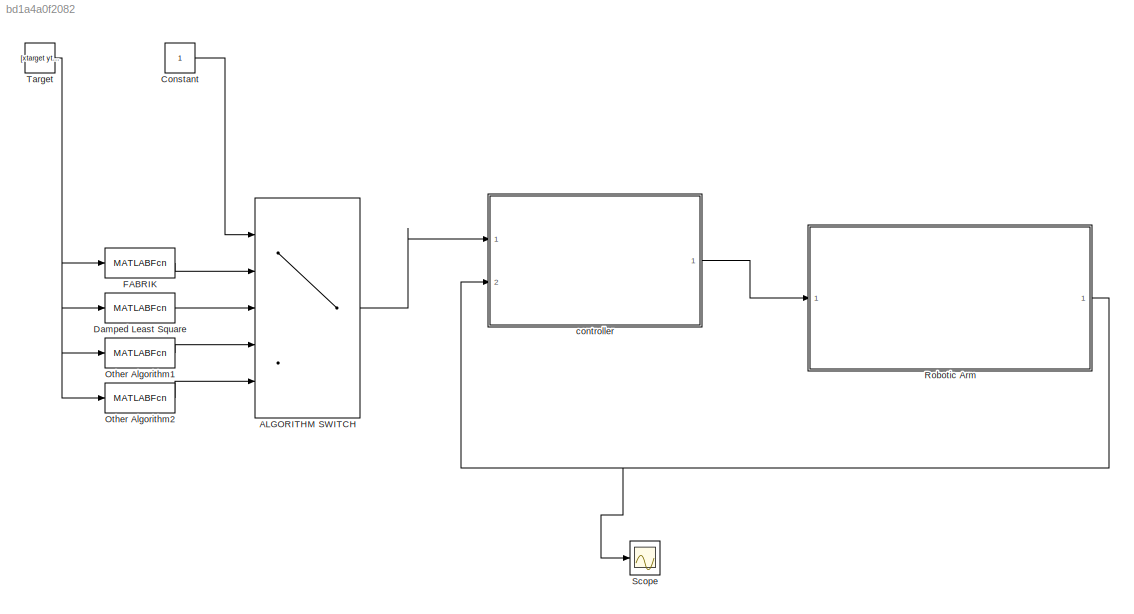
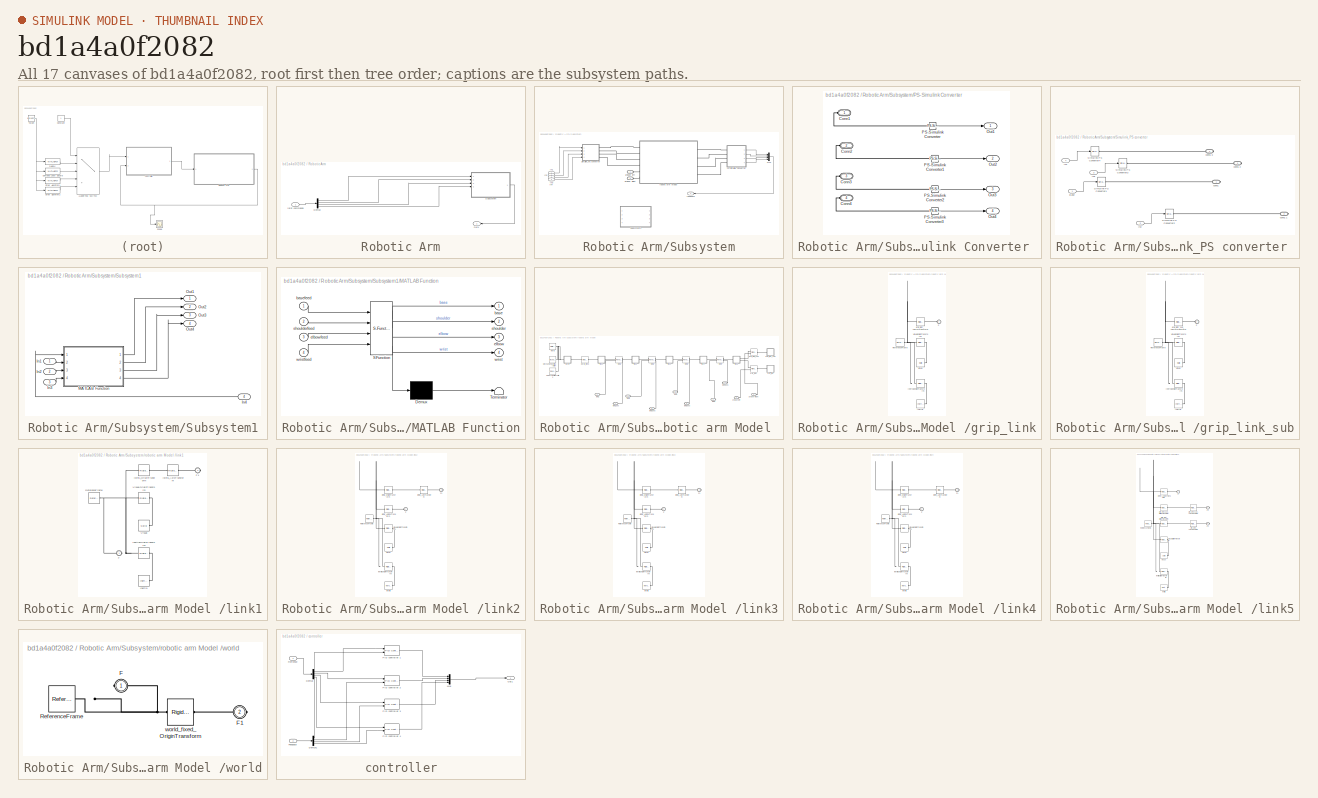
[diagram: thumbnail index - all 17 canvases of the model, root first then tree order]
MODEL slx_bd1a4a0f2082
KIND model
CONFIG AbsTol = auto
CONFIG EnableMultiTasking = off
CONFIG FixedStep = auto
CONFIG MaxStep = auto
CONFIG MinStep = auto
CONFIG RelTol = 1e-3
CONFIG SampleTimeConstraint = Unconstrained
CONFIG Solver = VariableStepAuto
CONFIG SolverName = VariableStepAuto
CONFIG StartTime = 0.0
CONFIG StopTime = 10
BLOCK [MultiPortSwitch] ALGORITHM SWITCH 
  InputSameDT = off
  Inputs = 4
  Ports = [5, 1]
  SaturateOnIntegerOverflow = off
BLOCK [Constant] Constant
BLOCK [MATLABFcn] Damped Least Square
  MATLABFcn = dampedLeastSquare
  Output1D = off
  OutputDimensions = 4
  Ports = [1, 1]
BLOCK [MATLABFcn] FABRIK 
  MATLABFcn = fcn
  Output1D = off
  OutputDimensions = 4
  Ports = [1, 1]
BLOCK [MATLABFcn] Other Algorithm1
  MATLABFcn = fcn
  Output1D = off
  OutputDimensions = 4
  Ports = [1, 1]
BLOCK [MATLABFcn] Other Algorithm2
  MATLABFcn = fcn
  Output1D = off
  OutputDimensions = 4
  Ports = [1, 1]
BLOCK [SubSystem] Robotic Arm
  Ports = [1, 1]
  RequestExecContextInheritance = off
BLOCK [Demux] Robotic Arm/Demux
  DisplayOption = bar
  Ports = [1, 4]
BLOCK [Outport] Robotic Arm/Out1
  IconDisplay = Port number
BLOCK [SubSystem] Robotic Arm/Subsystem
  Ports = [4, 1, 0, 0, 0, 2]
  RequestExecContextInheritance = off
BLOCK [Inport] Robotic Arm/Subsystem/In1
  IconDisplay = Port number
BLOCK [Inport] Robotic Arm/Subsystem/In2
  IconDisplay = Port number
  Port = 2
BLOCK [Inport] Robotic Arm/Subsystem/In3
  IconDisplay = Port number
  Port = 3
BLOCK [Inport] Robotic Arm/Subsystem/In4
  IconDisplay = Port number
  Port = 4
BLOCK [Mux] Robotic Arm/Subsystem/Mux
  DisplayOption = bar
  Ports = [4, 1]
BLOCK [SubSystem] Robotic Arm/Subsystem/PS-Simulink Converter 
  Ports = [0, 4, 0, 0, 0, 4]
  RequestExecContextInheritance = off
BLOCK [PMIOPort] Robotic Arm/Subsystem/PS-Simulink Converter /Conn1
  Side = Left
BLOCK [PMIOPort] Robotic Arm/Subsystem/PS-Simulink Converter /Conn2
  Port = 2
  Side = Left
BLOCK [PMIOPort] Robotic Arm/Subsystem/PS-Simulink Converter /Conn3
  Port = 3
  Side = Left
BLOCK [PMIOPort] Robotic Arm/Subsystem/PS-Simulink Converter /Conn4
  Port = 4
  Side = Left
BLOCK [Outport] Robotic Arm/Subsystem/PS-Simulink Converter /Out1
  IconDisplay = Port number
BLOCK [Outport] Robotic Arm/Subsystem/PS-Simulink Converter /Out2
  IconDisplay = Port number
  Port = 2
BLOCK [Outport] Robotic Arm/Subsystem/PS-Simulink Converter /Out3
  IconDisplay = Port number
  Port = 3
BLOCK [Outport] Robotic Arm/Subsystem/PS-Simulink Converter /Out4
  IconDisplay = Port number
  Port = 4
BLOCK [Reference] Robotic Arm/Subsystem/PS-Simulink Converter /PS-Simulink Converter  REF=nesl_utility/PS-Simulink
Converter
  Ports = [0, 1, 0, 0, 0, 1]
  SourceBlock = nesl_utility/PS-Simulink\nConverter
  SourceProductBaseCode = SS
  SourceProductName = Simscape
  SourceType = PS-Simulink\nConverter
BLOCK [Reference] Robotic Arm/Subsystem/PS-Simulink Converter /PS-Simulink Converter1  REF=nesl_utility/PS-Simulink
Converter
  Ports = [0, 1, 0, 0, 0, 1]
  SourceBlock = nesl_utility/PS-Simulink\nConverter
  SourceProductBaseCode = SS
  SourceProductName = Simscape
  SourceType = PS-Simulink\nConverter
BLOCK [Reference] Robotic Arm/Subsystem/PS-Simulink Converter /PS-Simulink Converter2  REF=nesl_utility/PS-Simulink
Converter
  Ports = [0, 1, 0, 0, 0, 1]
  SourceBlock = nesl_utility/PS-Simulink\nConverter
  SourceProductBaseCode = SS
  SourceProductName = Simscape
  SourceType = PS-Simulink\nConverter
BLOCK [Reference] Robotic Arm/Subsystem/PS-Simulink Converter /PS-Simulink Converter3  REF=nesl_utility/PS-Simulink
Converter
  Ports = [0, 1, 0, 0, 0, 1]
  SourceBlock = nesl_utility/PS-Simulink\nConverter
  SourceProductBaseCode = SS
  SourceProductName = Simscape
  SourceType = PS-Simulink\nConverter
BLOCK [SubSystem] Robotic Arm/Subsystem/Simulink_PS converter 
  Ports = [4, 0, 0, 0, 0, 0, 4]
  RequestExecContextInheritance = off
BLOCK [Inport] Robotic Arm/Subsystem/Simulink_PS converter /Base
  IconDisplay = Port number
BLOCK [Inport] Robotic Arm/Subsystem/Simulink_PS converter /In2
  IconDisplay = Port number
  Port = 2
BLOCK [Inport] Robotic Arm/Subsystem/Simulink_PS converter /In3
  IconDisplay = Port number
  Port = 3
BLOCK [Inport] Robotic Arm/Subsystem/Simulink_PS converter /In4
  IconDisplay = Port number
  Port = 4
BLOCK [Reference] Robotic Arm/Subsystem/Simulink_PS converter /Simulink-PS Converter1  REF=nesl_utility/Simulink-PS
Converter
  Ports = [1, 0, 0, 0, 0, 0, 1]
  SourceBlock = nesl_utility/Simulink-PS\nConverter
  SourceProductBaseCode = SS
  SourceProductName = Simscape
  SourceType = Simulink-PS\nConverter
BLOCK [Reference] Robotic Arm/Subsystem/Simulink_PS converter /Simulink-PS Converter2  REF=nesl_utility/Simulink-PS
Converter
  Ports = [1, 0, 0, 0, 0, 0, 1]
  SourceBlock = nesl_utility/Simulink-PS\nConverter
  SourceProductBaseCode = SS
  SourceProductName = Simscape
  SourceType = Simulink-PS\nConverter
BLOCK [Reference] Robotic Arm/Subsystem/Simulink_PS converter /Simulink-PS Converter3  REF=nesl_utility/Simulink-PS
Converter
  Ports = [1, 0, 0, 0, 0, 0, 1]
  SourceBlock = nesl_utility/Simulink-PS\nConverter
  SourceProductBaseCode = SS
  SourceProductName = Simscape
  SourceType = Simulink-PS\nConverter
BLOCK [Reference] Robotic Arm/Subsystem/Simulink_PS converter /Simulink-PS Converter4  REF=nesl_utility/Simulink-PS
Converter
  Ports = [1, 0, 0, 0, 0, 0, 1]
  SourceBlock = nesl_utility/Simulink-PS\nConverter
  SourceProductBaseCode = SS
  SourceProductName = Simscape
  SourceType = Simulink-PS\nConverter
BLOCK [PMIOPort] Robotic Arm/Subsystem/Simulink_PS converter /conn1 
  Side = Right
BLOCK [PMIOPort] Robotic Arm/Subsystem/Simulink_PS converter /conn1 1
  Port = 2
  Side = Right
BLOCK [PMIOPort] Robotic Arm/Subsystem/Simulink_PS converter /conn1 2
  Port = 3
  Side = Right
BLOCK [PMIOPort] Robotic Arm/Subsystem/Simulink_PS converter /conn1 3
  Port = 4
  Side = Right
BLOCK [SubSystem] Robotic Arm/Subsystem/Subsystem1
  Ports = [4, 4]
  RequestExecContextInheritance = off
BLOCK [Inport] Robotic Arm/Subsystem/Subsystem1/In1
  IconDisplay = Port number
BLOCK [Inport] Robotic Arm/Subsystem/Subsystem1/In2
  IconDisplay = Port number
  Port = 2
BLOCK [Inport] Robotic Arm/Subsystem/Subsystem1/In3
  IconDisplay = Port number
  Port = 3
BLOCK [Inport] Robotic Arm/Subsystem/Subsystem1/In4
  IconDisplay = Port number
  Port = 4
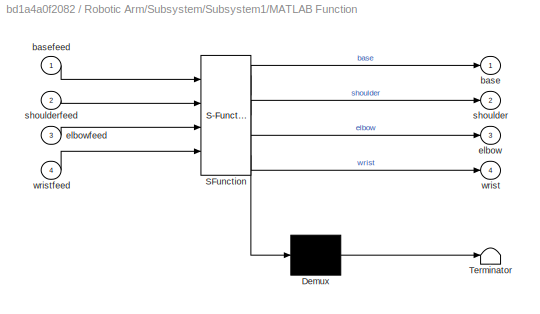
BLOCK [SubSystem] Robotic Arm/Subsystem/Subsystem1/MATLAB Function
  ErrorFcn = Stateflow.Translate.translate
  PermitHierarchicalResolution = ExplicitOnly
  Ports = [4, 4]
  RequestExecContextInheritance = off
  SFBlockType = MATLAB Function
  TreatAsAtomicUnit = on
BLOCK [Demux] Robotic Arm/Subsystem/Subsystem1/MATLAB Function/ Demux 
  Outputs = 1
  Ports = [1, 1]
BLOCK [S-Function] Robotic Arm/Subsystem/Subsystem1/MATLAB Function/ SFunction 
  EnableBusSupport = off
  FunctionName = sf_sfun
  PortCounts = [4 5]
  Ports = [4, 5]
  SFcnIsStateOwnerBlock = off
  SFunctionDeploymentMode = off
  Tag = Stateflow S-Function physicalModel 2
BLOCK [Terminator] Robotic Arm/Subsystem/Subsystem1/MATLAB Function/ Terminator 
BLOCK [Outport] Robotic Arm/Subsystem/Subsystem1/MATLAB Function/base
  IconDisplay = Port number
BLOCK [Inport] Robotic Arm/Subsystem/Subsystem1/MATLAB Function/basefeed
  IconDisplay = Port number
BLOCK [Outport] Robotic Arm/Subsystem/Subsystem1/MATLAB Function/elbow
  IconDisplay = Port number
  Port = 3
BLOCK [Inport] Robotic Arm/Subsystem/Subsystem1/MATLAB Function/elbowfeed
  IconDisplay = Port number
  Port = 3
BLOCK [Outport] Robotic Arm/Subsystem/Subsystem1/MATLAB Function/shoulder
  IconDisplay = Port number
  Port = 2
BLOCK [Inport] Robotic Arm/Subsystem/Subsystem1/MATLAB Function/shoulderfeed
  IconDisplay = Port number
  Port = 2
BLOCK [Outport] Robotic Arm/Subsystem/Subsystem1/MATLAB Function/wrist
  IconDisplay = Port number
  Port = 4
BLOCK [Inport] Robotic Arm/Subsystem/Subsystem1/MATLAB Function/wristfeed
  IconDisplay = Port number
  Port = 4
BLOCK [Outport] Robotic Arm/Subsystem/Subsystem1/Out1
  IconDisplay = Port number
BLOCK [Outport] Robotic Arm/Subsystem/Subsystem1/Out2
  IconDisplay = Port number
  Port = 2
BLOCK [Outport] Robotic Arm/Subsystem/Subsystem1/Out3
  IconDisplay = Port number
  Port = 3
BLOCK [Outport] Robotic Arm/Subsystem/Subsystem1/Out4
  IconDisplay = Port number
  Port = 4
BLOCK [Outport] Robotic Arm/Subsystem/feedback 
  IconDisplay = Port number
BLOCK [PMIOPort] Robotic Arm/Subsystem/gripper Right
  Port = 2
  Side = Left
BLOCK [PMIOPort] Robotic Arm/Subsystem/gripper left 
  Side = Left
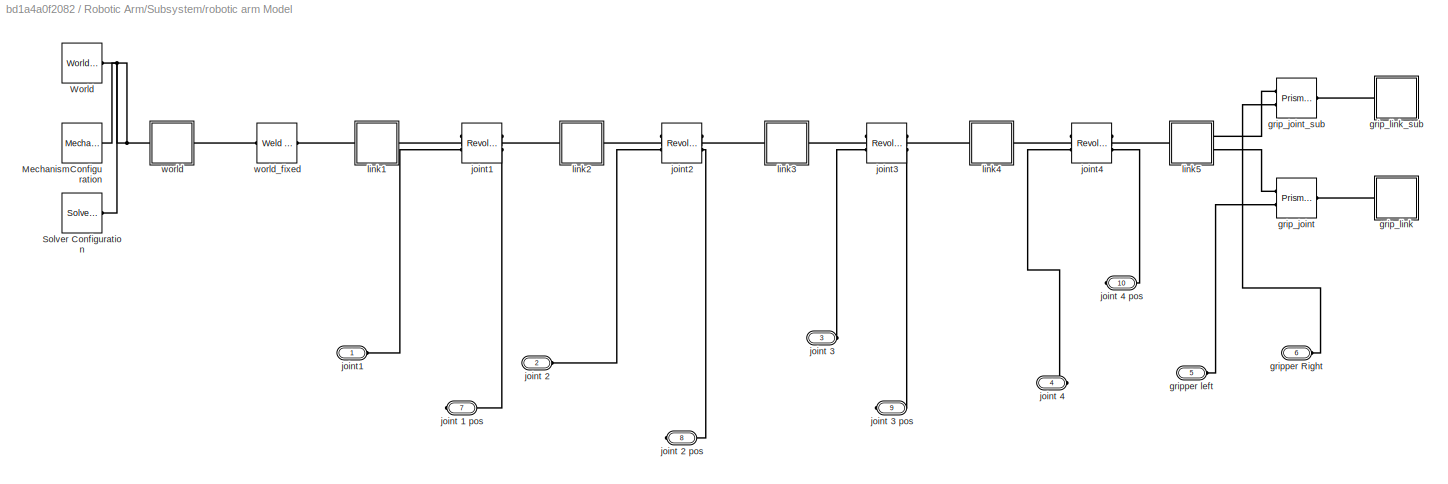
BLOCK [SubSystem] Robotic Arm/Subsystem/robotic arm Model 
  Ports = [0, 0, 0, 0, 0, 6, 4]
  RequestExecContextInheritance = off
BLOCK [Reference] Robotic Arm/Subsystem/robotic arm Model /MechanismConfiguration  REF=sm_lib/Utilities/Mechanism
Configuration
  Ports = [0, 0, 0, 0, 0, 0, 1]
  SourceBlock = sm_lib/Utilities/Mechanism\nConfiguration
  SourceProductBaseCode = MS
  SourceProductName = Simscape Multibody
  SourceType = Mechanism\nConfiguration
BLOCK [Reference] Robotic Arm/Subsystem/robotic arm Model /Solver Configuration  REF=nesl_utility/Solver
Configuration
  Ports = [0, 0, 0, 0, 0, 0, 1]
  SourceBlock = nesl_utility/Solver\nConfiguration
  SourceProductBaseCode = SS
  SourceProductName = Simscape
  SourceType = Solver\nConfiguration
BLOCK [Reference] Robotic Arm/Subsystem/robotic arm Model /World  REF=sm_lib/Frames and
Transforms/World Frame
  Ports = [0, 0, 0, 0, 0, 0, 1]
  SourceBlock = sm_lib/Frames and\nTransforms/World Frame
  SourceProductBaseCode = MS
  SourceProductName = Simscape Multibody
  SourceType = World Frame
BLOCK [Reference] Robotic Arm/Subsystem/robotic arm Model /grip_joint  REF=sm_lib/Joints/Prismatic
Joint
  Ports = [0, 0, 0, 0, 0, 2, 1]
  SourceBlock = sm_lib/Joints/Prismatic\nJoint
  SourceProductBaseCode = MS
  SourceProductName = Simscape Multibody
  SourceType = Prismatic\nJoint
BLOCK [Reference] Robotic Arm/Subsystem/robotic arm Model /grip_joint_sub  REF=sm_lib/Joints/Prismatic
Joint
  Ports = [0, 0, 0, 0, 0, 2, 1]
  SourceBlock = sm_lib/Joints/Prismatic\nJoint
  SourceProductBaseCode = MS
  SourceProductName = Simscape Multibody
  SourceType = Prismatic\nJoint
BLOCK [SubSystem] Robotic Arm/Subsystem/robotic arm Model /grip_link
  Ports = [0, 0, 0, 0, 0, 1]
  RequestExecContextInheritance = off
BLOCK [PMIOPort] Robotic Arm/Subsystem/robotic arm Model /grip_link/F
  Side = Left
BLOCK [Reference] Robotic Arm/Subsystem/robotic arm Model /grip_link/Inertia  REF=sm_lib/Body Elements/Inertia
  Ports = [0, 0, 0, 0, 0, 0, 1]
  SourceBlock = sm_lib/Body Elements/Inertia
  SourceProductBaseCode = MS
  SourceProductName = Simscape Multibody
  SourceType = Inertia
BLOCK [Reference] Robotic Arm/Subsystem/robotic arm Model /grip_link/InertiaOriginTransform  REF=sm_lib/Frames and
Transforms/Rigid
Transform
  Ports = [0, 0, 0, 0, 0, 1, 1]
  SourceBlock = sm_lib/Frames and\nTransforms/Rigid\nTransform
  SourceProductBaseCode = MS
  SourceProductName = Simscape Multibody
  SourceType = Rigid\nTransform
BLOCK [Reference] Robotic Arm/Subsystem/robotic arm Model /grip_link/ReferenceFrame  REF=sm_lib/Frames and
Transforms/Reference
Frame
  Ports = [0, 0, 0, 0, 0, 0, 1]
  SourceBlock = sm_lib/Frames and\nTransforms/Reference\nFrame
  SourceProductBaseCode = MS
  SourceProductName = Simscape Multibody
  SourceType = Reference\nFrame
BLOCK [Reference] Robotic Arm/Subsystem/robotic arm Model /grip_link/Visual  REF=sm_lib/Body Elements/Solid
  Ports = [0, 0, 0, 0, 0, 0, 1]
  SourceBlock = sm_lib/Body Elements/Solid
  SourceProductBaseCode = MS
  SourceProductName = Simscape Multibody
  SourceType = Solid
BLOCK [Reference] Robotic Arm/Subsystem/robotic arm Model /grip_link/VisualOriginTransform  REF=sm_lib/Frames and
Transforms/Rigid
Transform
  Ports = [0, 0, 0, 0, 0, 1, 1]
  SourceBlock = sm_lib/Frames and\nTransforms/Rigid\nTransform
  SourceProductBaseCode = MS
  SourceProductName = Simscape Multibody
  SourceType = Rigid\nTransform
BLOCK [Reference] Robotic Arm/Subsystem/robotic arm Model /grip_link/grip_joint_AxisInvTransform  REF=sm_lib/Frames and
Transforms/Rigid
Transform
  Ports = [0, 0, 0, 0, 0, 1, 1]
  SourceBlock = sm_lib/Frames and\nTransforms/Rigid\nTransform
  SourceProductBaseCode = MS
  SourceProductName = Simscape Multibody
  SourceType = Rigid\nTransform
BLOCK [SubSystem] Robotic Arm/Subsystem/robotic arm Model /grip_link_sub
  Ports = [0, 0, 0, 0, 0, 1]
  RequestExecContextInheritance = off
BLOCK [PMIOPort] Robotic Arm/Subsystem/robotic arm Model /grip_link_sub/F
  Side = Left
BLOCK [Reference] Robotic Arm/Subsystem/robotic arm Model /grip_link_sub/Inertia  REF=sm_lib/Body Elements/Inertia
  Ports = [0, 0, 0, 0, 0, 0, 1]
  SourceBlock = sm_lib/Body Elements/Inertia
  SourceProductBaseCode = MS
  SourceProductName = Simscape Multibody
  SourceType = Inertia
BLOCK [Reference] Robotic Arm/Subsystem/robotic arm Model /grip_link_sub/InertiaOriginTransform  REF=sm_lib/Frames and
Transforms/Rigid
Transform
  Ports = [0, 0, 0, 0, 0, 1, 1]
  SourceBlock = sm_lib/Frames and\nTransforms/Rigid\nTransform
  SourceProductBaseCode = MS
  SourceProductName = Simscape Multibody
  SourceType = Rigid\nTransform
BLOCK [Reference] Robotic Arm/Subsystem/robotic arm Model /grip_link_sub/ReferenceFrame  REF=sm_lib/Frames and
Transforms/Reference
Frame
  Ports = [0, 0, 0, 0, 0, 0, 1]
  SourceBlock = sm_lib/Frames and\nTransforms/Reference\nFrame
  SourceProductBaseCode = MS
  SourceProductName = Simscape Multibody
  SourceType = Reference\nFrame
BLOCK [Reference] Robotic Arm/Subsystem/robotic arm Model /grip_link_sub/Visual  REF=sm_lib/Body Elements/Solid
  Ports = [0, 0, 0, 0, 0, 0, 1]
  SourceBlock = sm_lib/Body Elements/Solid
  SourceProductBaseCode = MS
  SourceProductName = Simscape Multibody
  SourceType = Solid
BLOCK [Reference] Robotic Arm/Subsystem/robotic arm Model /grip_link_sub/VisualOriginTransform  REF=sm_lib/Frames and
Transforms/Rigid
Transform
  Ports = [0, 0, 0, 0, 0, 1, 1]
  SourceBlock = sm_lib/Frames and\nTransforms/Rigid\nTransform
  SourceProductBaseCode = MS
  SourceProductName = Simscape Multibody
  SourceType = Rigid\nTransform
BLOCK [Reference] Robotic Arm/Subsystem/robotic arm Model /grip_link_sub/grip_joint_sub_AxisInvTransform  REF=sm_lib/Frames and
Transforms/Rigid
Transform
  Ports = [0, 0, 0, 0, 0, 1, 1]
  SourceBlock = sm_lib/Frames and\nTransforms/Rigid\nTransform
  SourceProductBaseCode = MS
  SourceProductName = Simscape Multibody
  SourceType = Rigid\nTransform
BLOCK [PMIOPort] Robotic Arm/Subsystem/robotic arm Model /gripper Right
  Port = 6
  Side = Left
BLOCK [PMIOPort] Robotic Arm/Subsystem/robotic arm Model /gripper left
  Port = 5
  Side = Left
BLOCK [PMIOPort] Robotic Arm/Subsystem/robotic arm Model /joint 1 pos 
  Port = 7
  Side = Right
BLOCK [PMIOPort] Robotic Arm/Subsystem/robotic arm Model /joint 2
  Port = 2
  Side = Left
BLOCK [PMIOPort] Robotic Arm/Subsystem/robotic arm Model /joint 2 pos 
  Port = 8
  Side = Right
BLOCK [PMIOPort] Robotic Arm/Subsystem/robotic arm Model /joint 3 
  Port = 3
  Side = Left
BLOCK [PMIOPort] Robotic Arm/Subsystem/robotic arm Model /joint 3 pos
  Port = 9
  Side = Right
BLOCK [PMIOPort] Robotic Arm/Subsystem/robotic arm Model /joint 4 
  Port = 4
  Side = Left
BLOCK [PMIOPort] Robotic Arm/Subsystem/robotic arm Model /joint 4 pos 
  Port = 10
  Side = Right
BLOCK [Reference] Robotic Arm/Subsystem/robotic arm Model /joint1  REF=sm_lib/Joints/Revolute Joint
  Ports = [0, 0, 0, 0, 0, 2, 2]
  SourceBlock = sm_lib/Joints/Revolute Joint
  SourceProductBaseCode = MS
  SourceProductName = Simscape Multibody
  SourceType = Revolute Joint
BLOCK [PMIOPort] Robotic Arm/Subsystem/robotic arm Model /joint1 
  Side = Left
BLOCK [Reference] Robotic Arm/Subsystem/robotic arm Model /joint2  REF=sm_lib/Joints/Revolute Joint
  Ports = [0, 0, 0, 0, 0, 2, 2]
  SourceBlock = sm_lib/Joints/Revolute Joint
  SourceProductBaseCode = MS
  SourceProductName = Simscape Multibody
  SourceType = Revolute Joint
BLOCK [Reference] Robotic Arm/Subsystem/robotic arm Model /joint3  REF=sm_lib/Joints/Revolute Joint
  Ports = [0, 0, 0, 0, 0, 2, 2]
  SourceBlock = sm_lib/Joints/Revolute Joint
  SourceProductBaseCode = MS
  SourceProductName = Simscape Multibody
  SourceType = Revolute Joint
BLOCK [Reference] Robotic Arm/Subsystem/robotic arm Model /joint4  REF=sm_lib/Joints/Revolute Joint
  Ports = [0, 0, 0, 0, 0, 2, 2]
  SourceBlock = sm_lib/Joints/Revolute Joint
  SourceProductBaseCode = MS
  SourceProductName = Simscape Multibody
  SourceType = Revolute Joint
BLOCK [SubSystem] Robotic Arm/Subsystem/robotic arm Model /link1
  Ports = [0, 0, 0, 0, 0, 1, 1]
  RequestExecContextInheritance = off
BLOCK [PMIOPort] Robotic Arm/Subsystem/robotic arm Model /link1/F
  Side = Left
BLOCK [PMIOPort] Robotic Arm/Subsystem/robotic arm Model /link1/F1
  Port = 2
  Side = Right
BLOCK [Reference] Robotic Arm/Subsystem/robotic arm Model /link1/Inertia  REF=sm_lib/Body Elements/Inertia
  Ports = [0, 0, 0, 0, 0, 0, 1]
  SourceBlock = sm_lib/Body Elements/Inertia
  SourceProductBaseCode = MS
  SourceProductName = Simscape Multibody
  SourceType = Inertia
BLOCK [Reference] Robotic Arm/Subsystem/robotic arm Model /link1/InertiaOriginTransform  REF=sm_lib/Frames and
Transforms/Rigid
Transform
  Ports = [0, 0, 0, 0, 0, 1, 1]
  SourceBlock = sm_lib/Frames and\nTransforms/Rigid\nTransform
  SourceProductBaseCode = MS
  SourceProductName = Simscape Multibody
  SourceType = Rigid\nTransform
BLOCK [Reference] Robotic Arm/Subsystem/robotic arm Model /link1/ReferenceFrame  REF=sm_lib/Frames and
Transforms/Reference
Frame
  Ports = [0, 0, 0, 0, 0, 0, 1]
  SourceBlock = sm_lib/Frames and\nTransforms/Reference\nFrame
  SourceProductBaseCode = MS
  SourceProductName = Simscape Multibody
  SourceType = Reference\nFrame
BLOCK [Reference] Robotic Arm/Subsystem/robotic arm Model /link1/Visual  REF=sm_lib/Body Elements/Solid
  Ports = [0, 0, 0, 0, 0, 0, 1]
  SourceBlock = sm_lib/Body Elements/Solid
  SourceProductBaseCode = MS
  SourceProductName = Simscape Multibody
  SourceType = Solid
BLOCK [Reference] Robotic Arm/Subsystem/robotic arm Model /link1/VisualOriginTransform  REF=sm_lib/Frames and
Transforms/Rigid
Transform
  Ports = [0, 0, 0, 0, 0, 1, 1]
  SourceBlock = sm_lib/Frames and\nTransforms/Rigid\nTransform
  SourceProductBaseCode = MS
  SourceProductName = Simscape Multibody
  SourceType = Rigid\nTransform
BLOCK [Reference] Robotic Arm/Subsystem/robotic arm Model /link1/joint1_AxisTransform  REF=sm_lib/Frames and
Transforms/Rigid
Transform
  Ports = [0, 0, 0, 0, 0, 1, 1]
  SourceBlock = sm_lib/Frames and\nTransforms/Rigid\nTransform
  SourceProductBaseCode = MS
  SourceProductName = Simscape Multibody
  SourceType = Rigid\nTransform
BLOCK [Reference] Robotic Arm/Subsystem/robotic arm Model /link1/joint1_OriginTransform  REF=sm_lib/Frames and
Transforms/Rigid
Transform
  Ports = [0, 0, 0, 0, 0, 1, 1]
  SourceBlock = sm_lib/Frames and\nTransforms/Rigid\nTransform
  SourceProductBaseCode = MS
  SourceProductName = Simscape Multibody
  SourceType = Rigid\nTransform
BLOCK [SubSystem] Robotic Arm/Subsystem/robotic arm Model /link2
  Ports = [0, 0, 0, 0, 0, 1, 1]
  RequestExecContextInheritance = off
BLOCK [PMIOPort] Robotic Arm/Subsystem/robotic arm Model /link2/F
  Side = Left
BLOCK [PMIOPort] Robotic Arm/Subsystem/robotic arm Model /link2/F1
  Port = 2
  Side = Right
BLOCK [Reference] Robotic Arm/Subsystem/robotic arm Model /link2/Inertia  REF=sm_lib/Body Elements/Inertia
  Ports = [0, 0, 0, 0, 0, 0, 1]
  SourceBlock = sm_lib/Body Elements/Inertia
  SourceProductBaseCode = MS
  SourceProductName = Simscape Multibody
  SourceType = Inertia
BLOCK [Reference] Robotic Arm/Subsystem/robotic arm Model /link2/InertiaOriginTransform  REF=sm_lib/Frames and
Transforms/Rigid
Transform
  Ports = [0, 0, 0, 0, 0, 1, 1]
  SourceBlock = sm_lib/Frames and\nTransforms/Rigid\nTransform
  SourceProductBaseCode = MS
  SourceProductName = Simscape Multibody
  SourceType = Rigid\nTransform
BLOCK [Reference] Robotic Arm/Subsystem/robotic arm Model /link2/ReferenceFrame  REF=sm_lib/Frames and
Transforms/Reference
Frame
  Ports = [0, 0, 0, 0, 0, 0, 1]
  SourceBlock = sm_lib/Frames and\nTransforms/Reference\nFrame
  SourceProductBaseCode = MS
  SourceProductName = Simscape Multibody
  SourceType = Reference\nFrame
BLOCK [Reference] Robotic Arm/Subsystem/robotic arm Model /link2/Visual  REF=sm_lib/Body Elements/Solid
  Ports = [0, 0, 0, 0, 0, 0, 1]
  SourceBlock = sm_lib/Body Elements/Solid
  SourceProductBaseCode = MS
  SourceProductName = Simscape Multibody
  SourceType = Solid
BLOCK [Reference] Robotic Arm/Subsystem/robotic arm Model /link2/VisualOriginTransform  REF=sm_lib/Frames and
Transforms/Rigid
Transform
  Ports = [0, 0, 0, 0, 0, 1, 1]
  SourceBlock = sm_lib/Frames and\nTransforms/Rigid\nTransform
  SourceProductBaseCode = MS
  SourceProductName = Simscape Multibody
  SourceType = Rigid\nTransform
BLOCK [Reference] Robotic Arm/Subsystem/robotic arm Model /link2/joint1_AxisInvTransform  REF=sm_lib/Frames and
Transforms/Rigid
Transform
  Ports = [0, 0, 0, 0, 0, 1, 1]
  SourceBlock = sm_lib/Frames and\nTransforms/Rigid\nTransform
  SourceProductBaseCode = MS
  SourceProductName = Simscape Multibody
  SourceType = Rigid\nTransform
BLOCK [Reference] Robotic Arm/Subsystem/robotic arm Model /link2/joint2_AxisTransform  REF=sm_lib/Frames and
Transforms/Rigid
Transform
  Ports = [0, 0, 0, 0, 0, 1, 1]
  SourceBlock = sm_lib/Frames and\nTransforms/Rigid\nTransform
  SourceProductBaseCode = MS
  SourceProductName = Simscape Multibody
  SourceType = Rigid\nTransform
BLOCK [Reference] Robotic Arm/Subsystem/robotic arm Model /link2/joint2_OriginTransform  REF=sm_lib/Frames and
Transforms/Rigid
Transform
  Ports = [0, 0, 0, 0, 0, 1, 1]
  SourceBlock = sm_lib/Frames and\nTransforms/Rigid\nTransform
  SourceProductBaseCode = MS
  SourceProductName = Simscape Multibody
  SourceType = Rigid\nTransform
BLOCK [SubSystem] Robotic Arm/Subsystem/robotic arm Model /link3
  Ports = [0, 0, 0, 0, 0, 1, 1]
  RequestExecContextInheritance = off
BLOCK [PMIOPort] Robotic Arm/Subsystem/robotic arm Model /link3/F
  Side = Left
BLOCK [PMIOPort] Robotic Arm/Subsystem/robotic arm Model /link3/F1
  Port = 2
  Side = Right
BLOCK [Reference] Robotic Arm/Subsystem/robotic arm Model /link3/Inertia  REF=sm_lib/Body Elements/Inertia
  Ports = [0, 0, 0, 0, 0, 0, 1]
  SourceBlock = sm_lib/Body Elements/Inertia
  SourceProductBaseCode = MS
  SourceProductName = Simscape Multibody
  SourceType = Inertia
BLOCK [Reference] Robotic Arm/Subsystem/robotic arm Model /link3/InertiaOriginTransform  REF=sm_lib/Frames and
Transforms/Rigid
Transform
  Ports = [0, 0, 0, 0, 0, 1, 1]
  SourceBlock = sm_lib/Frames and\nTransforms/Rigid\nTransform
  SourceProductBaseCode = MS
  SourceProductName = Simscape Multibody
  SourceType = Rigid\nTransform
BLOCK [Reference] Robotic Arm/Subsystem/robotic arm Model /link3/ReferenceFrame  REF=sm_lib/Frames and
Transforms/Reference
Frame
  Ports = [0, 0, 0, 0, 0, 0, 1]
  SourceBlock = sm_lib/Frames and\nTransforms/Reference\nFrame
  SourceProductBaseCode = MS
  SourceProductName = Simscape Multibody
  SourceType = Reference\nFrame
BLOCK [Reference] Robotic Arm/Subsystem/robotic arm Model /link3/Visual  REF=sm_lib/Body Elements/Solid
  Ports = [0, 0, 0, 0, 0, 0, 1]
  SourceBlock = sm_lib/Body Elements/Solid
  SourceProductBaseCode = MS
  SourceProductName = Simscape Multibody
  SourceType = Solid
BLOCK [Reference] Robotic Arm/Subsystem/robotic arm Model /link3/VisualOriginTransform  REF=sm_lib/Frames and
Transforms/Rigid
Transform
  Ports = [0, 0, 0, 0, 0, 1, 1]
  SourceBlock = sm_lib/Frames and\nTransforms/Rigid\nTransform
  SourceProductBaseCode = MS
  SourceProductName = Simscape Multibody
  SourceType = Rigid\nTransform
BLOCK [Reference] Robotic Arm/Subsystem/robotic arm Model /link3/joint2_AxisInvTransform  REF=sm_lib/Frames and
Transforms/Rigid
Transform
  Ports = [0, 0, 0, 0, 0, 1, 1]
  SourceBlock = sm_lib/Frames and\nTransforms/Rigid\nTransform
  SourceProductBaseCode = MS
  SourceProductName = Simscape Multibody
  SourceType = Rigid\nTransform
BLOCK [Reference] Robotic Arm/Subsystem/robotic arm Model /link3/joint3_AxisTransform  REF=sm_lib/Frames and
Transforms/Rigid
Transform
  Ports = [0, 0, 0, 0, 0, 1, 1]
  SourceBlock = sm_lib/Frames and\nTransforms/Rigid\nTransform
  SourceProductBaseCode = MS
  SourceProductName = Simscape Multibody
  SourceType = Rigid\nTransform
BLOCK [Reference] Robotic Arm/Subsystem/robotic arm Model /link3/joint3_OriginTransform  REF=sm_lib/Frames and
Transforms/Rigid
Transform
  Ports = [0, 0, 0, 0, 0, 1, 1]
  SourceBlock = sm_lib/Frames and\nTransforms/Rigid\nTransform
  SourceProductBaseCode = MS
  SourceProductName = Simscape Multibody
  SourceType = Rigid\nTransform
BLOCK [SubSystem] Robotic Arm/Subsystem/robotic arm Model /link4
  Ports = [0, 0, 0, 0, 0, 1, 1]
  RequestExecContextInheritance = off
BLOCK [PMIOPort] Robotic Arm/Subsystem/robotic arm Model /link4/F
  Side = Left
BLOCK [PMIOPort] Robotic Arm/Subsystem/robotic arm Model /link4/F1
  Port = 2
  Side = Right
BLOCK [Reference] Robotic Arm/Subsystem/robotic arm Model /link4/Inertia  REF=sm_lib/Body Elements/Inertia
  Ports = [0, 0, 0, 0, 0, 0, 1]
  SourceBlock = sm_lib/Body Elements/Inertia
  SourceProductBaseCode = MS
  SourceProductName = Simscape Multibody
  SourceType = Inertia
BLOCK [Reference] Robotic Arm/Subsystem/robotic arm Model /link4/InertiaOriginTransform  REF=sm_lib/Frames and
Transforms/Rigid
Transform
  Ports = [0, 0, 0, 0, 0, 1, 1]
  SourceBlock = sm_lib/Frames and\nTransforms/Rigid\nTransform
  SourceProductBaseCode = MS
  SourceProductName = Simscape Multibody
  SourceType = Rigid\nTransform
BLOCK [Reference] Robotic Arm/Subsystem/robotic arm Model /link4/ReferenceFrame  REF=sm_lib/Frames and
Transforms/Reference
Frame
  Ports = [0, 0, 0, 0, 0, 0, 1]
  SourceBlock = sm_lib/Frames and\nTransforms/Reference\nFrame
  SourceProductBaseCode = MS
  SourceProductName = Simscape Multibody
  SourceType = Reference\nFrame
BLOCK [Reference] Robotic Arm/Subsystem/robotic arm Model /link4/Visual  REF=sm_lib/Body Elements/Solid
  Ports = [0, 0, 0, 0, 0, 0, 1]
  SourceBlock = sm_lib/Body Elements/Solid
  SourceProductBaseCode = MS
  SourceProductName = Simscape Multibody
  SourceType = Solid
BLOCK [Reference] Robotic Arm/Subsystem/robotic arm Model /link4/VisualOriginTransform  REF=sm_lib/Frames and
Transforms/Rigid
Transform
  Ports = [0, 0, 0, 0, 0, 1, 1]
  SourceBlock = sm_lib/Frames and\nTransforms/Rigid\nTransform
  SourceProductBaseCode = MS
  SourceProductName = Simscape Multibody
  SourceType = Rigid\nTransform
BLOCK [Reference] Robotic Arm/Subsystem/robotic arm Model /link4/joint3_AxisInvTransform  REF=sm_lib/Frames and
Transforms/Rigid
Transform
  Ports = [0, 0, 0, 0, 0, 1, 1]
  SourceBlock = sm_lib/Frames and\nTransforms/Rigid\nTransform
  SourceProductBaseCode = MS
  SourceProductName = Simscape Multibody
  SourceType = Rigid\nTransform
BLOCK [Reference] Robotic Arm/Subsystem/robotic arm Model /link4/joint4_AxisTransform  REF=sm_lib/Frames and
Transforms/Rigid
Transform
  Ports = [0, 0, 0, 0, 0, 1, 1]
  SourceBlock = sm_lib/Frames and\nTransforms/Rigid\nTransform
  SourceProductBaseCode = MS
  SourceProductName = Simscape Multibody
  SourceType = Rigid\nTransform
BLOCK [Reference] Robotic Arm/Subsystem/robotic arm Model /link4/joint4_OriginTransform  REF=sm_lib/Frames and
Transforms/Rigid
Transform
  Ports = [0, 0, 0, 0, 0, 1, 1]
  SourceBlock = sm_lib/Frames and\nTransforms/Rigid\nTransform
  SourceProductBaseCode = MS
  SourceProductName = Simscape Multibody
  SourceType = Rigid\nTransform
BLOCK [SubSystem] Robotic Arm/Subsystem/robotic arm Model /link5
  Ports = [0, 0, 0, 0, 0, 1, 2]
  RequestExecContextInheritance = off
BLOCK [PMIOPort] Robotic Arm/Subsystem/robotic arm Model /link5/F
  Side = Left
BLOCK [PMIOPort] Robotic Arm/Subsystem/robotic arm Model /link5/F1
  Port = 3
  Side = Right
BLOCK [PMIOPort] Robotic Arm/Subsystem/robotic arm Model /link5/F2
  Port = 2
  Side = Right
BLOCK [Reference] Robotic Arm/Subsystem/robotic arm Model /link5/Inertia  REF=sm_lib/Body Elements/Inertia
  Ports = [0, 0, 0, 0, 0, 0, 1]
  SourceBlock = sm_lib/Body Elements/Inertia
  SourceProductBaseCode = MS
  SourceProductName = Simscape Multibody
  SourceType = Inertia
BLOCK [Reference] Robotic Arm/Subsystem/robotic arm Model /link5/InertiaOriginTransform  REF=sm_lib/Frames and
Transforms/Rigid
Transform
  Ports = [0, 0, 0, 0, 0, 1, 1]
  SourceBlock = sm_lib/Frames and\nTransforms/Rigid\nTransform
  SourceProductBaseCode = MS
  SourceProductName = Simscape Multibody
  SourceType = Rigid\nTransform
BLOCK [Reference] Robotic Arm/Subsystem/robotic arm Model /link5/ReferenceFrame  REF=sm_lib/Frames and
Transforms/Reference
Frame
  Ports = [0, 0, 0, 0, 0, 0, 1]
  SourceBlock = sm_lib/Frames and\nTransforms/Reference\nFrame
  SourceProductBaseCode = MS
  SourceProductName = Simscape Multibody
  SourceType = Reference\nFrame
BLOCK [Reference] Robotic Arm/Subsystem/robotic arm Model /link5/Visual  REF=sm_lib/Body Elements/Solid
  Ports = [0, 0, 0, 0, 0, 0, 1]
  SourceBlock = sm_lib/Body Elements/Solid
  SourceProductBaseCode = MS
  SourceProductName = Simscape Multibody
  SourceType = Solid
BLOCK [Reference] Robotic Arm/Subsystem/robotic arm Model /link5/VisualOriginTransform  REF=sm_lib/Frames and
Transforms/Rigid
Transform
  Ports = [0, 0, 0, 0, 0, 1, 1]
  SourceBlock = sm_lib/Frames and\nTransforms/Rigid\nTransform
  SourceProductBaseCode = MS
  SourceProductName = Simscape Multibody
  SourceType = Rigid\nTransform
BLOCK [Reference] Robotic Arm/Subsystem/robotic arm Model /link5/grip_joint_AxisTransform  REF=sm_lib/Frames and
Transforms/Rigid
Transform
  Ports = [0, 0, 0, 0, 0, 1, 1]
  SourceBlock = sm_lib/Frames and\nTransforms/Rigid\nTransform
  SourceProductBaseCode = MS
  SourceProductName = Simscape Multibody
  SourceType = Rigid\nTransform
BLOCK [Reference] Robotic Arm/Subsystem/robotic arm Model /link5/grip_joint_OriginTransform  REF=sm_lib/Frames and
Transforms/Rigid
Transform
  Ports = [0, 0, 0, 0, 0, 1, 1]
  SourceBlock = sm_lib/Frames and\nTransforms/Rigid\nTransform
  SourceProductBaseCode = MS
  SourceProductName = Simscape Multibody
  SourceType = Rigid\nTransform
BLOCK [Reference] Robotic Arm/Subsystem/robotic arm Model /link5/grip_joint_sub_AxisTransform  REF=sm_lib/Frames and
Transforms/Rigid
Transform
  Ports = [0, 0, 0, 0, 0, 1, 1]
  SourceBlock = sm_lib/Frames and\nTransforms/Rigid\nTransform
  SourceProductBaseCode = MS
  SourceProductName = Simscape Multibody
  SourceType = Rigid\nTransform
BLOCK [Reference] Robotic Arm/Subsystem/robotic arm Model /link5/grip_joint_sub_OriginTransform  REF=sm_lib/Frames and
Transforms/Rigid
Transform
  Ports = [0, 0, 0, 0, 0, 1, 1]
  SourceBlock = sm_lib/Frames and\nTransforms/Rigid\nTransform
  SourceProductBaseCode = MS
  SourceProductName = Simscape Multibody
  SourceType = Rigid\nTransform
BLOCK [Reference] Robotic Arm/Subsystem/robotic arm Model /link5/joint4_AxisInvTransform  REF=sm_lib/Frames and
Transforms/Rigid
Transform
  Ports = [0, 0, 0, 0, 0, 1, 1]
  SourceBlock = sm_lib/Frames and\nTransforms/Rigid\nTransform
  SourceProductBaseCode = MS
  SourceProductName = Simscape Multibody
  SourceType = Rigid\nTransform
BLOCK [SubSystem] Robotic Arm/Subsystem/robotic arm Model /world
  Ports = [0, 0, 0, 0, 0, 1, 1]
  RequestExecContextInheritance = off
BLOCK [PMIOPort] Robotic Arm/Subsystem/robotic arm Model /world/F
  Side = Left
BLOCK [PMIOPort] Robotic Arm/Subsystem/robotic arm Model /world/F1
  Port = 2
  Side = Right
BLOCK [Reference] Robotic Arm/Subsystem/robotic arm Model /world/ReferenceFrame  REF=sm_lib/Frames and
Transforms/Reference
Frame
  Ports = [0, 0, 0, 0, 0, 0, 1]
  SourceBlock = sm_lib/Frames and\nTransforms/Reference\nFrame
  SourceProductBaseCode = MS
  SourceProductName = Simscape Multibody
  SourceType = Reference\nFrame
BLOCK [Reference] Robotic Arm/Subsystem/robotic arm Model /world/world_fixed_OriginTransform  REF=sm_lib/Frames and
Transforms/Rigid
Transform
  Ports = [0, 0, 0, 0, 0, 1, 1]
  SourceBlock = sm_lib/Frames and\nTransforms/Rigid\nTransform
  SourceProductBaseCode = MS
  SourceProductName = Simscape Multibody
  SourceType = Rigid\nTransform
BLOCK [Reference] Robotic Arm/Subsystem/robotic arm Model /world_fixed  REF=sm_lib/Joints/Weld Joint
  Ports = [0, 0, 0, 0, 0, 1, 1]
  SourceBlock = sm_lib/Joints/Weld Joint
  SourceProductBaseCode = MS
  SourceProductName = Simscape Multibody
  SourceType = Weld Joint
BLOCK [Inport] Robotic Arm/joint commands
  IconDisplay = Port number
BLOCK [Scope] Scope
  Floating = off
  NumInputPorts = 1
  Ports = [1]
  ScopeSpecificationString = Simulink.scopes.TimeScopeBlockCfg('CurrentConfiguration', extmgr.ConfigurationSet(extmgr.Configuration('Core','General UI',true),extmgr.Configuration('Core','Source UI',true),extmgr.Configuration('Sources','WiredSimulink',true),extmgr.Configuration('Visuals','Time Domain',true,'SerializedDisplays',{struct('MinYLimReal','-4.10618','MaxYLimReal','4.10618','YLabelReal','','MinYLimMag','0.00000','MaxY...<+1393ch>
BLOCK [Constant] Target
  Value = [xtarget ytarget ztarget]
BLOCK [SubSystem] controller
  Ports = [2, 1]
  RequestExecContextInheritance = off
  TreatAsAtomicUnit = on
BLOCK [Demux] controller/Demux
  DisplayOption = bar
  Ports = [1, 4]
BLOCK [Demux] controller/Demux1
  DisplayOption = bar
  Ports = [1, 4]
BLOCK [Inport] controller/Feedback 
  IconDisplay = Port number
  Port = 2
BLOCK [Mux] controller/Mux
  DisplayOption = bar
  Ports = [4, 1]
BLOCK [Outport] controller/Out1
  IconDisplay = Port number
BLOCK [Reference] controller/PID controller 1  REF=simulink/Continuous/PID Controller (2DOF)
  Ports = [2, 1]
  SourceBlock = simulink/Continuous/PID Controller (2DOF)
  SourceProductBaseCode = SL
  SourceProductName = Simulink
  SourceType = PID 2dof
BLOCK [Reference] controller/PID controller 2  REF=simulink/Continuous/PID Controller (2DOF)
  Ports = [2, 1]
  SourceBlock = simulink/Continuous/PID Controller (2DOF)
  SourceProductBaseCode = SL
  SourceProductName = Simulink
  SourceType = PID 2dof
BLOCK [Reference] controller/PID controller 3   REF=simulink/Continuous/PID Controller (2DOF)
  Ports = [2, 1]
  SourceBlock = simulink/Continuous/PID Controller (2DOF)
  SourceProductBaseCode = SL
  SourceProductName = Simulink
  SourceType = PID 2dof
BLOCK [Reference] controller/PID controller 4  REF=simulink/Continuous/PID Controller (2DOF)
  Ports = [2, 1]
  SourceBlock = simulink/Continuous/PID Controller (2DOF)
  SourceProductBaseCode = SL
  SourceProductName = Simulink
  SourceType = PID 2dof
BLOCK [Inport] controller/Refrence 
  IconDisplay = Port number
LINE ALGORITHM SWITCH :1 -> controller:1
LINE Constant:1 -> ALGORITHM SWITCH :1
LINE Damped Least Square:1 -> ALGORITHM SWITCH :3
LINE FABRIK :1 -> ALGORITHM SWITCH :2
LINE Other Algorithm1:1 -> ALGORITHM SWITCH :4
LINE Other Algorithm2:1 -> ALGORITHM SWITCH :5
LINE Robotic Arm/Demux:1 -> Robotic Arm/Subsystem:1
LINE Robotic Arm/Demux:2 -> Robotic Arm/Subsystem:2
LINE Robotic Arm/Demux:3 -> Robotic Arm/Subsystem:3
LINE Robotic Arm/Demux:4 -> Robotic Arm/Subsystem:4
LINE Robotic Arm/Subsystem/In1:1 -> Robotic Arm/Subsystem/Simulink_PS converter :1
LINE Robotic Arm/Subsystem/In2:1 -> Robotic Arm/Subsystem/Simulink_PS converter :2
LINE Robotic Arm/Subsystem/In3:1 -> Robotic Arm/Subsystem/Simulink_PS converter :3
LINE Robotic Arm/Subsystem/In4:1 -> Robotic Arm/Subsystem/Simulink_PS converter :4
LINE Robotic Arm/Subsystem/Mux:1 -> Robotic Arm/Subsystem/feedback :1
LINE Robotic Arm/Subsystem/PS-Simulink Converter /PS-Simulink Converter1:1 -> Robotic Arm/Subsystem/PS-Simulink Converter /Out2:1
LINE Robotic Arm/Subsystem/PS-Simulink Converter /PS-Simulink Converter2:1 -> Robotic Arm/Subsystem/PS-Simulink Converter /Out3:1
LINE Robotic Arm/Subsystem/PS-Simulink Converter /PS-Simulink Converter3:1 -> Robotic Arm/Subsystem/PS-Simulink Converter /Out4:1
LINE Robotic Arm/Subsystem/PS-Simulink Converter /PS-Simulink Converter:1 -> Robotic Arm/Subsystem/PS-Simulink Converter /Out1:1
LINE Robotic Arm/Subsystem/PS-Simulink Converter :1 -> Robotic Arm/Subsystem/Mux:1
LINE Robotic Arm/Subsystem/PS-Simulink Converter :2 -> Robotic Arm/Subsystem/Mux:2
LINE Robotic Arm/Subsystem/PS-Simulink Converter :3 -> Robotic Arm/Subsystem/Mux:3
LINE Robotic Arm/Subsystem/PS-Simulink Converter :4 -> Robotic Arm/Subsystem/Mux:4
LINE Robotic Arm/Subsystem/Simulink_PS converter /Base:1 -> Robotic Arm/Subsystem/Simulink_PS converter /Simulink-PS Converter1:1
LINE Robotic Arm/Subsystem/Simulink_PS converter /In2:1 -> Robotic Arm/Subsystem/Simulink_PS converter /Simulink-PS Converter2:1
LINE Robotic Arm/Subsystem/Simulink_PS converter /In3:1 -> Robotic Arm/Subsystem/Simulink_PS converter /Simulink-PS Converter3:1
LINE Robotic Arm/Subsystem/Simulink_PS converter /In4:1 -> Robotic Arm/Subsystem/Simulink_PS converter /Simulink-PS Converter4:1
LINE Robotic Arm/Subsystem/Subsystem1/In1:1 -> Robotic Arm/Subsystem/Subsystem1/MATLAB Function:2
LINE Robotic Arm/Subsystem/Subsystem1/In2:1 -> Robotic Arm/Subsystem/Subsystem1/MATLAB Function:3
LINE Robotic Arm/Subsystem/Subsystem1/In3:1 -> Robotic Arm/Subsystem/Subsystem1/MATLAB Function:4
LINE Robotic Arm/Subsystem/Subsystem1/In4:1 -> Robotic Arm/Subsystem/Subsystem1/MATLAB Function:1
LINE Robotic Arm/Subsystem/Subsystem1/MATLAB Function:1 -> Robotic Arm/Subsystem/Subsystem1/Out1:1
LINE Robotic Arm/Subsystem/Subsystem1/MATLAB Function:2 -> Robotic Arm/Subsystem/Subsystem1/Out2:1
LINE Robotic Arm/Subsystem/Subsystem1/MATLAB Function:3 -> Robotic Arm/Subsystem/Subsystem1/Out3:1
LINE Robotic Arm/Subsystem/Subsystem1/MATLAB Function:4 -> Robotic Arm/Subsystem/Subsystem1/Out4:1
LINE Robotic Arm/Subsystem:1 -> Robotic Arm/Out1:1
LINE Robotic Arm/joint commands:1 -> Robotic Arm/Demux:1
NET Robotic Arm:1 -> Scope:1, controller:2
NET Target:1 -> Damped Least Square:1, FABRIK :1, Other Algorithm1:1, Other Algorithm2:1
LINE controller/Demux1:1 -> controller/PID controller 1:2
LINE controller/Demux1:2 -> controller/PID controller 2:2
LINE controller/Demux1:3 -> controller/PID controller 3 :2
LINE controller/Demux1:4 -> controller/PID controller 4:2
LINE controller/Demux:1 -> controller/PID controller 1:1
LINE controller/Demux:2 -> controller/PID controller 2:1
LINE controller/Demux:3 -> controller/PID controller 3 :1
LINE controller/Demux:4 -> controller/PID controller 4:1
LINE controller/Feedback :1 -> controller/Demux1:1
LINE controller/Mux:1 -> controller/Out1:1
LINE controller/PID controller 1:1 -> controller/Mux:1
LINE controller/PID controller 2:1 -> controller/Mux:2
LINE controller/PID controller 3 :1 -> controller/Mux:3
LINE controller/PID controller 4:1 -> controller/Mux:4
LINE controller/Refrence :1 -> controller/Demux:1
LINE controller:1 -> Robotic Arm:1
PLINE Robotic Arm/Subsystem/PS-Simulink Converter /Conn1:RConn1 -- Robotic Arm/Subsystem/PS-Simulink Converter /PS-Simulink Converter:LConn1
PLINE Robotic Arm/Subsystem/PS-Simulink Converter /Conn2:RConn1 -- Robotic Arm/Subsystem/PS-Simulink Converter /PS-Simulink Converter1:LConn1
PLINE Robotic Arm/Subsystem/PS-Simulink Converter /Conn3:RConn1 -- Robotic Arm/Subsystem/PS-Simulink Converter /PS-Simulink Converter2:LConn1
PLINE Robotic Arm/Subsystem/PS-Simulink Converter /Conn4:RConn1 -- Robotic Arm/Subsystem/PS-Simulink Converter /PS-Simulink Converter3:LConn1
PLINE Robotic Arm/Subsystem/PS-Simulink Converter :LConn1 -- Robotic Arm/Subsystem/robotic arm Model :RConn1
PLINE Robotic Arm/Subsystem/PS-Simulink Converter :LConn2 -- Robotic Arm/Subsystem/robotic arm Model :RConn2
PLINE Robotic Arm/Subsystem/PS-Simulink Converter :LConn3 -- Robotic Arm/Subsystem/robotic arm Model :RConn3
PLINE Robotic Arm/Subsystem/PS-Simulink Converter :LConn4 -- Robotic Arm/Subsystem/robotic arm Model :RConn4
PLINE Robotic Arm/Subsystem/Simulink_PS converter /Simulink-PS Converter1:RConn1 -- Robotic Arm/Subsystem/Simulink_PS converter /conn1 :RConn1
PLINE Robotic Arm/Subsystem/Simulink_PS converter /Simulink-PS Converter2:RConn1 -- Robotic Arm/Subsystem/Simulink_PS converter /conn1 1:RConn1
PLINE Robotic Arm/Subsystem/Simulink_PS converter /Simulink-PS Converter3:RConn1 -- Robotic Arm/Subsystem/Simulink_PS converter /conn1 2:RConn1
PLINE Robotic Arm/Subsystem/Simulink_PS converter /Simulink-PS Converter4:RConn1 -- Robotic Arm/Subsystem/Simulink_PS converter /conn1 3:RConn1
PLINE Robotic Arm/Subsystem/Simulink_PS converter :RConn1 -- Robotic Arm/Subsystem/robotic arm Model :LConn1
PLINE Robotic Arm/Subsystem/Simulink_PS converter :RConn2 -- Robotic Arm/Subsystem/robotic arm Model :LConn2
PLINE Robotic Arm/Subsystem/Simulink_PS converter :RConn3 -- Robotic Arm/Subsystem/robotic arm Model :LConn3
PLINE Robotic Arm/Subsystem/Simulink_PS converter :RConn4 -- Robotic Arm/Subsystem/robotic arm Model :LConn4
PLINE Robotic Arm/Subsystem/gripper Right:RConn1 -- Robotic Arm/Subsystem/robotic arm Model :LConn6
PLINE Robotic Arm/Subsystem/gripper left :RConn1 -- Robotic Arm/Subsystem/robotic arm Model :LConn5
PNET net1: Robotic Arm/Subsystem/robotic arm Model /MechanismConfiguration:RConn1 -- Robotic Arm/Subsystem/robotic arm Model /Solver Configuration:RConn1 -- Robotic Arm/Subsystem/robotic arm Model /World:RConn1 -- Robotic Arm/Subsystem/robotic arm Model /world:LConn1
PLINE Robotic Arm/Subsystem/robotic arm Model /grip_joint:LConn1 -- Robotic Arm/Subsystem/robotic arm Model /link5:RConn2
PLINE Robotic Arm/Subsystem/robotic arm Model /grip_joint:LConn2 -- Robotic Arm/Subsystem/robotic arm Model /gripper left:RConn1
PLINE Robotic Arm/Subsystem/robotic arm Model /grip_joint:RConn1 -- Robotic Arm/Subsystem/robotic arm Model /grip_link:LConn1
PLINE Robotic Arm/Subsystem/robotic arm Model /grip_joint_sub:LConn1 -- Robotic Arm/Subsystem/robotic arm Model /link5:RConn1
PLINE Robotic Arm/Subsystem/robotic arm Model /grip_joint_sub:LConn2 -- Robotic Arm/Subsystem/robotic arm Model /gripper Right:RConn1
PLINE Robotic Arm/Subsystem/robotic arm Model /grip_joint_sub:RConn1 -- Robotic Arm/Subsystem/robotic arm Model /grip_link_sub:LConn1
PLINE Robotic Arm/Subsystem/robotic arm Model /grip_link/F:RConn1 -- Robotic Arm/Subsystem/robotic arm Model /grip_link/grip_joint_AxisInvTransform:RConn1
PLINE Robotic Arm/Subsystem/robotic arm Model /grip_link/Inertia:RConn1 -- Robotic Arm/Subsystem/robotic arm Model /grip_link/InertiaOriginTransform:RConn1
PNET net2: Robotic Arm/Subsystem/robotic arm Model /grip_link/InertiaOriginTransform:LConn1 -- Robotic Arm/Subsystem/robotic arm Model /grip_link/ReferenceFrame:RConn1 -- Robotic Arm/Subsystem/robotic arm Model /grip_link/VisualOriginTransform:LConn1 -- Robotic Arm/Subsystem/robotic arm Model /grip_link/grip_joint_AxisInvTransform:LConn1
PLINE Robotic Arm/Subsystem/robotic arm Model /grip_link/Visual:RConn1 -- Robotic Arm/Subsystem/robotic arm Model /grip_link/VisualOriginTransform:RConn1
PLINE Robotic Arm/Subsystem/robotic arm Model /grip_link_sub/F:RConn1 -- Robotic Arm/Subsystem/robotic arm Model /grip_link_sub/grip_joint_sub_AxisInvTransform:RConn1
PLINE Robotic Arm/Subsystem/robotic arm Model /grip_link_sub/Inertia:RConn1 -- Robotic Arm/Subsystem/robotic arm Model /grip_link_sub/InertiaOriginTransform:RConn1
PNET net3: Robotic Arm/Subsystem/robotic arm Model /grip_link_sub/InertiaOriginTransform:LConn1 -- Robotic Arm/Subsystem/robotic arm Model /grip_link_sub/ReferenceFrame:RConn1 -- Robotic Arm/Subsystem/robotic arm Model /grip_link_sub/VisualOriginTransform:LConn1 -- Robotic Arm/Subsystem/robotic arm Model /grip_link_sub/grip_joint_sub_AxisInvTransform:LConn1
PLINE Robotic Arm/Subsystem/robotic arm Model /grip_link_sub/Visual:RConn1 -- Robotic Arm/Subsystem/robotic arm Model /grip_link_sub/VisualOriginTransform:RConn1
PLINE Robotic Arm/Subsystem/robotic arm Model /joint 1 pos :RConn1 -- Robotic Arm/Subsystem/robotic arm Model /joint1:RConn2
PLINE Robotic Arm/Subsystem/robotic arm Model /joint 2 pos :RConn1 -- Robotic Arm/Subsystem/robotic arm Model /joint2:RConn2
PLINE Robotic Arm/Subsystem/robotic arm Model /joint 2:RConn1 -- Robotic Arm/Subsystem/robotic arm Model /joint2:LConn2
PLINE Robotic Arm/Subsystem/robotic arm Model /joint 3 :RConn1 -- Robotic Arm/Subsystem/robotic arm Model /joint3:LConn2
PLINE Robotic Arm/Subsystem/robotic arm Model /joint 3 pos:RConn1 -- Robotic Arm/Subsystem/robotic arm Model /joint3:RConn2
PLINE Robotic Arm/Subsystem/robotic arm Model /joint 4 :RConn1 -- Robotic Arm/Subsystem/robotic arm Model /joint4:LConn2
PLINE Robotic Arm/Subsystem/robotic arm Model /joint 4 pos :RConn1 -- Robotic Arm/Subsystem/robotic arm Model /joint4:RConn2
PLINE Robotic Arm/Subsystem/robotic arm Model /joint1 :RConn1 -- Robotic Arm/Subsystem/robotic arm Model /joint1:LConn2
PLINE Robotic Arm/Subsystem/robotic arm Model /joint1:LConn1 -- Robotic Arm/Subsystem/robotic arm Model /link1:RConn1
PLINE Robotic Arm/Subsystem/robotic arm Model /joint1:RConn1 -- Robotic Arm/Subsystem/robotic arm Model /link2:LConn1
PLINE Robotic Arm/Subsystem/robotic arm Model /joint2:LConn1 -- Robotic Arm/Subsystem/robotic arm Model /link2:RConn1
PLINE Robotic Arm/Subsystem/robotic arm Model /joint2:RConn1 -- Robotic Arm/Subsystem/robotic arm Model /link3:LConn1
PLINE Robotic Arm/Subsystem/robotic arm Model /joint3:LConn1 -- Robotic Arm/Subsystem/robotic arm Model /link3:RConn1
PLINE Robotic Arm/Subsystem/robotic arm Model /joint3:RConn1 -- Robotic Arm/Subsystem/robotic arm Model /link4:LConn1
PLINE Robotic Arm/Subsystem/robotic arm Model /joint4:LConn1 -- Robotic Arm/Subsystem/robotic arm Model /link4:RConn1
PLINE Robotic Arm/Subsystem/robotic arm Model /joint4:RConn1 -- Robotic Arm/Subsystem/robotic arm Model /link5:LConn1
PLINE Robotic Arm/Subsystem/robotic arm Model /link1/F1:RConn1 -- Robotic Arm/Subsystem/robotic arm Model /link1/joint1_AxisTransform:RConn1
PNET net4: Robotic Arm/Subsystem/robotic arm Model /link1/F:RConn1 -- Robotic Arm/Subsystem/robotic arm Model /link1/InertiaOriginTransform:LConn1 -- Robotic Arm/Subsystem/robotic arm Model /link1/ReferenceFrame:RConn1 -- Robotic Arm/Subsystem/robotic arm Model /link1/VisualOriginTransform:LConn1 -- Robotic Arm/Subsystem/robotic arm Model /link1/joint1_OriginTransform:LConn1
PLINE Robotic Arm/Subsystem/robotic arm Model /link1/Inertia:RConn1 -- Robotic Arm/Subsystem/robotic arm Model /link1/InertiaOriginTransform:RConn1
PLINE Robotic Arm/Subsystem/robotic arm Model /link1/Visual:RConn1 -- Robotic Arm/Subsystem/robotic arm Model /link1/VisualOriginTransform:RConn1
PLINE Robotic Arm/Subsystem/robotic arm Model /link1/joint1_AxisTransform:LConn1 -- Robotic Arm/Subsystem/robotic arm Model /link1/joint1_OriginTransform:RConn1
PLINE Robotic Arm/Subsystem/robotic arm Model /link1:LConn1 -- Robotic Arm/Subsystem/robotic arm Model /world_fixed:RConn1
PLINE Robotic Arm/Subsystem/robotic arm Model /link2/F1:RConn1 -- Robotic Arm/Subsystem/robotic arm Model /link2/joint2_AxisTransform:RConn1
PLINE Robotic Arm/Subsystem/robotic arm Model /link2/F:RConn1 -- Robotic Arm/Subsystem/robotic arm Model /link2/joint1_AxisInvTransform:RConn1
PLINE Robotic Arm/Subsystem/robotic arm Model /link2/Inertia:RConn1 -- Robotic Arm/Subsystem/robotic arm Model /link2/InertiaOriginTransform:RConn1
PNET net5: Robotic Arm/Subsystem/robotic arm Model /link2/InertiaOriginTransform:LConn1 -- Robotic Arm/Subsystem/robotic arm Model /link2/ReferenceFrame:RConn1 -- Robotic Arm/Subsystem/robotic arm Model /link2/VisualOriginTransform:LConn1 -- Robotic Arm/Subsystem/robotic arm Model /link2/joint1_AxisInvTransform:LConn1 -- Robotic Arm/Subsystem/robotic arm Model /link2/joint2_OriginTransform:LConn1
PLINE Robotic Arm/Subsystem/robotic arm Model /link2/Visual:RConn1 -- Robotic Arm/Subsystem/robotic arm Model /link2/VisualOriginTransform:RConn1
PLINE Robotic Arm/Subsystem/robotic arm Model /link2/joint2_AxisTransform:LConn1 -- Robotic Arm/Subsystem/robotic arm Model /link2/joint2_OriginTransform:RConn1
PLINE Robotic Arm/Subsystem/robotic arm Model /link3/F1:RConn1 -- Robotic Arm/Subsystem/robotic arm Model /link3/joint3_AxisTransform:RConn1
PLINE Robotic Arm/Subsystem/robotic arm Model /link3/F:RConn1 -- Robotic Arm/Subsystem/robotic arm Model /link3/joint2_AxisInvTransform:RConn1
PLINE Robotic Arm/Subsystem/robotic arm Model /link3/Inertia:RConn1 -- Robotic Arm/Subsystem/robotic arm Model /link3/InertiaOriginTransform:RConn1
PNET net6: Robotic Arm/Subsystem/robotic arm Model /link3/InertiaOriginTransform:LConn1 -- Robotic Arm/Subsystem/robotic arm Model /link3/ReferenceFrame:RConn1 -- Robotic Arm/Subsystem/robotic arm Model /link3/VisualOriginTransform:LConn1 -- Robotic Arm/Subsystem/robotic arm Model /link3/joint2_AxisInvTransform:LConn1 -- Robotic Arm/Subsystem/robotic arm Model /link3/joint3_OriginTransform:LConn1
PLINE Robotic Arm/Subsystem/robotic arm Model /link3/Visual:RConn1 -- Robotic Arm/Subsystem/robotic arm Model /link3/VisualOriginTransform:RConn1
PLINE Robotic Arm/Subsystem/robotic arm Model /link3/joint3_AxisTransform:LConn1 -- Robotic Arm/Subsystem/robotic arm Model /link3/joint3_OriginTransform:RConn1
PLINE Robotic Arm/Subsystem/robotic arm Model /link4/F1:RConn1 -- Robotic Arm/Subsystem/robotic arm Model /link4/joint4_AxisTransform:RConn1
PLINE Robotic Arm/Subsystem/robotic arm Model /link4/F:RConn1 -- Robotic Arm/Subsystem/robotic arm Model /link4/joint3_AxisInvTransform:RConn1
PLINE Robotic Arm/Subsystem/robotic arm Model /link4/Inertia:RConn1 -- Robotic Arm/Subsystem/robotic arm Model /link4/InertiaOriginTransform:RConn1
PNET net7: Robotic Arm/Subsystem/robotic arm Model /link4/InertiaOriginTransform:LConn1 -- Robotic Arm/Subsystem/robotic arm Model /link4/ReferenceFrame:RConn1 -- Robotic Arm/Subsystem/robotic arm Model /link4/VisualOriginTransform:LConn1 -- Robotic Arm/Subsystem/robotic arm Model /link4/joint3_AxisInvTransform:LConn1 -- Robotic Arm/Subsystem/robotic arm Model /link4/joint4_OriginTransform:LConn1
PLINE Robotic Arm/Subsystem/robotic arm Model /link4/Visual:RConn1 -- Robotic Arm/Subsystem/robotic arm Model /link4/VisualOriginTransform:RConn1
PLINE Robotic Arm/Subsystem/robotic arm Model /link4/joint4_AxisTransform:LConn1 -- Robotic Arm/Subsystem/robotic arm Model /link4/joint4_OriginTransform:RConn1
PLINE Robotic Arm/Subsystem/robotic arm Model /link5/F1:RConn1 -- Robotic Arm/Subsystem/robotic arm Model /link5/grip_joint_AxisTransform:RConn1
PLINE Robotic Arm/Subsystem/robotic arm Model /link5/F2:RConn1 -- Robotic Arm/Subsystem/robotic arm Model /link5/grip_joint_sub_AxisTransform:RConn1
PLINE Robotic Arm/Subsystem/robotic arm Model /link5/F:RConn1 -- Robotic Arm/Subsystem/robotic arm Model /link5/joint4_AxisInvTransform:RConn1
PLINE Robotic Arm/Subsystem/robotic arm Model /link5/Inertia:RConn1 -- Robotic Arm/Subsystem/robotic arm Model /link5/InertiaOriginTransform:RConn1
PNET net8: Robotic Arm/Subsystem/robotic arm Model /link5/InertiaOriginTransform:LConn1 -- Robotic Arm/Subsystem/robotic arm Model /link5/ReferenceFrame:RConn1 -- Robotic Arm/Subsystem/robotic arm Model /link5/VisualOriginTransform:LConn1 -- Robotic Arm/Subsystem/robotic arm Model /link5/grip_joint_OriginTransform:LConn1 -- Robotic Arm/Subsystem/robotic arm Model /link5/grip_joint_sub_OriginTransform:LConn1 -- Robotic Arm/Subsystem/robotic arm Model /link5/joint4_AxisInvTransform:LConn1
PLINE Robotic Arm/Subsystem/robotic arm Model /link5/Visual:RConn1 -- Robotic Arm/Subsystem/robotic arm Model /link5/VisualOriginTransform:RConn1
PLINE Robotic Arm/Subsystem/robotic arm Model /link5/grip_joint_AxisTransform:LConn1 -- Robotic Arm/Subsystem/robotic arm Model /link5/grip_joint_OriginTransform:RConn1
PLINE Robotic Arm/Subsystem/robotic arm Model /link5/grip_joint_sub_AxisTransform:LConn1 -- Robotic Arm/Subsystem/robotic arm Model /link5/grip_joint_sub_OriginTransform:RConn1
PLINE Robotic Arm/Subsystem/robotic arm Model /world/F1:RConn1 -- Robotic Arm/Subsystem/robotic arm Model /world/world_fixed_OriginTransform:RConn1
PNET net9: Robotic Arm/Subsystem/robotic arm Model /world/F:RConn1 -- Robotic Arm/Subsystem/robotic arm Model /world/ReferenceFrame:RConn1 -- Robotic Arm/Subsystem/robotic arm Model /world/world_fixed_OriginTransform:LConn1
PLINE Robotic Arm/Subsystem/robotic arm Model /world:RConn1 -- Robotic Arm/Subsystem/robotic arm Model /world_fixed:LConn1
note: NET lines group one-source signal fan-out (src -> all destinations, sorted); 1:1 wires keep LINE; PNET lines group multi-terminal physical nets as a canonical sorted terminal list (undirected conserving connections); 2-terminal nets keep the pairwise PLINE form
CHART Robotic Arm/Subsystem/Subsystem1/MATLAB Function states=1 transitions=1
  STATE_LABEL 'eML_blk_kernel()'
  STATE_LABEL 'SCRIPT:\nfunction [base,shoulder,elbow,wrist]= fcn(basefeed,shoulderfeed,elbowfeed,wristfeed)\n\nbase = basefeed +100;\nshoulder= shoulderfeed;\nelbow = elbowfeed;\nwrist =wristfeed;\n\n\n'
